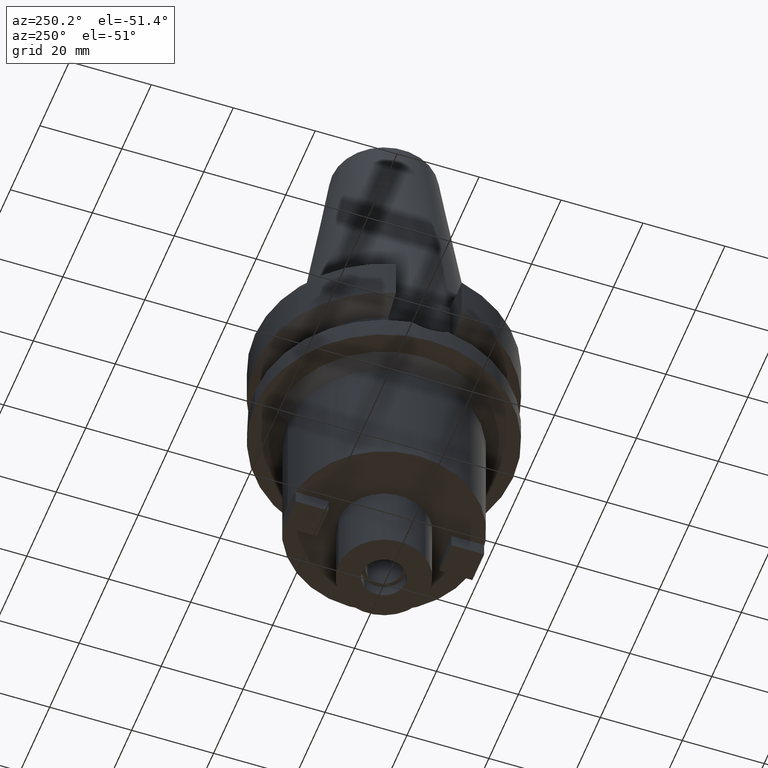
[diagram: clean part render]
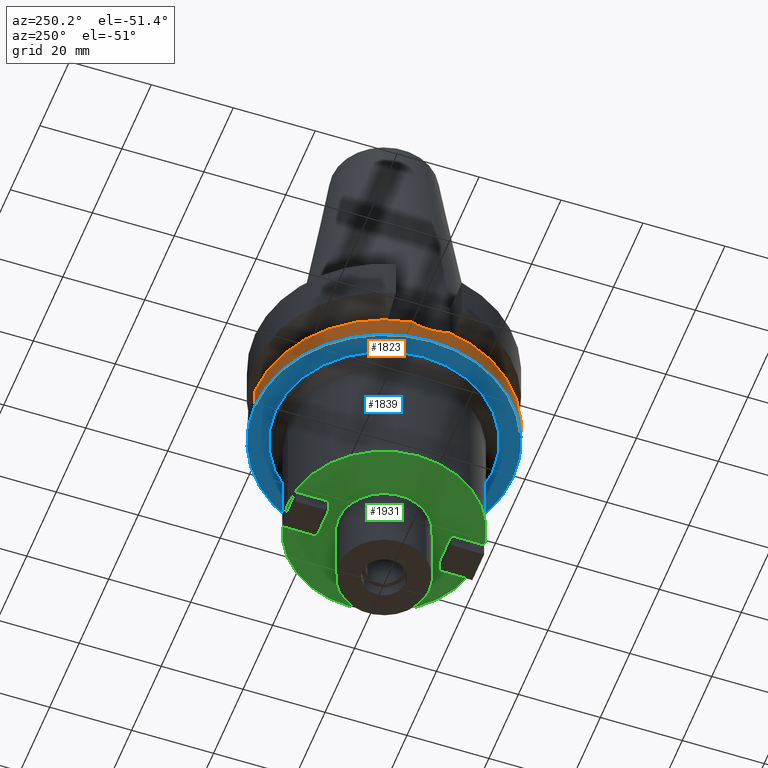
[diagram: same view with three faces highlighted in distinct colors, each labeled with its STEP entity id]
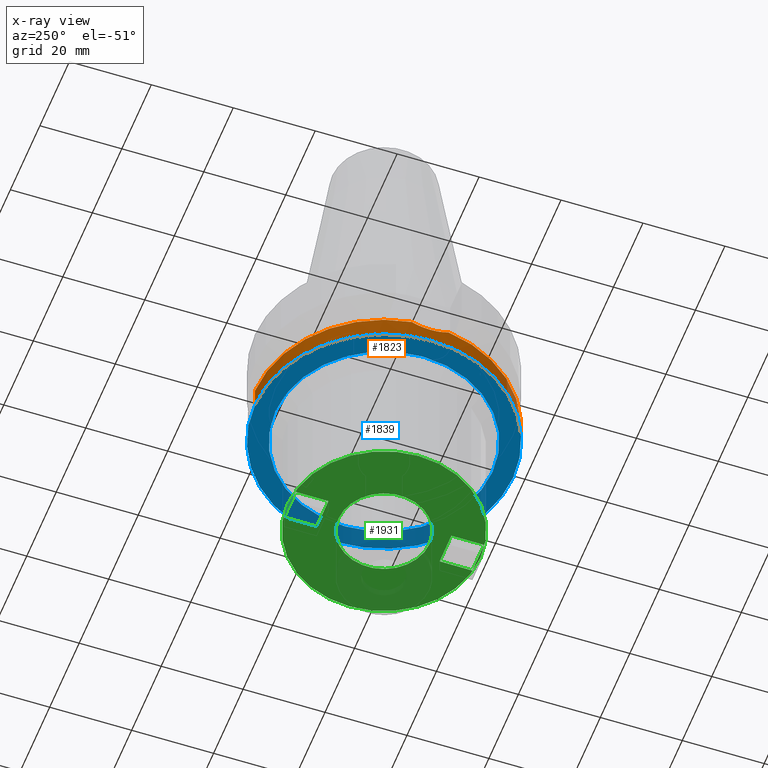
[diagram: x-ray of the same camera — body ghosted, the three highlighted faces saturated]
A machine part, auxiliary view with three faces highlighted in distinct colors.
The next image is the same camera in x-ray (body ghosted, the three faces saturated) — at least one of them is partly hidden behind the body in this view.
Their STEP definitions:

[orange] entity #1823 — the highlighted cylindrical surface (partial cylindrical patch) has radius 31.5 mm, axis along (0, 0, -1).
#444=CARTESIAN_POINT('',(-3.117899877609E1,4.485536235554E0,-2.163449434733E1));
#470=CARTESIAN_POINT('',(-3.117899877609E1,-4.485536235554E0,
-2.163449434733E1));
#505=CARTESIAN_POINT('',(0.E0,0.E0,-2.163449434733E1));
#506=DIRECTION('',(0.E0,0.E0,-1.E0));
#507=DIRECTION('',(0.E0,-1.E0,0.E0));
#508=AXIS2_PLACEMENT_3D('',#505,#506,#507);
#558=DIRECTION('',(0.E0,1.099151708819E-13,-1.E0));
#559=VECTOR('',#558,5.365505652669E0);
#560=CARTESIAN_POINT('',(0.E0,3.15E1,-2.163449434733E1));
#561=LINE('',#560,#559);
#565=CARTESIAN_POINT('',(0.E0,0.E0,-2.163449434733E1));
#566=DIRECTION('',(0.E0,0.E0,-1.E0));
#567=DIRECTION('',(-9.898094849553E-1,1.423979757319E-1,0.E0));
#568=AXIS2_PLACEMENT_3D('',#565,#566,#567);
#608=CARTESIAN_POINT('',(-3.117899877609E1,4.485536235554E0,-2.163449434733E1));
#609=CARTESIAN_POINT('',(-3.124423357808E1,4.032088597538E0,-2.193877402887E1));
#610=CARTESIAN_POINT('',(-3.135971202356E1,3.088611271723E0,-2.243951042622E1));
#611=CARTESIAN_POINT('',(-3.147335039534E1,1.577609785839E0,-2.289666088954E1));
#612=CARTESIAN_POINT('',(-3.151358178442E1,-1.104147917737E-2,
-2.305267738941E1));
#613=CARTESIAN_POINT('',(-3.147231200138E1,-1.596340580381E0,
-2.289259003373E1));
#614=CARTESIAN_POINT('',(-3.135844480018E1,-3.099975252077E0,
-2.243419198236E1));
#615=CARTESIAN_POINT('',(-3.124366543948E1,-4.036037733524E0,
-2.193612401652E1));
#616=CARTESIAN_POINT('',(-3.117899877609E1,-4.485536235554E0,
-2.163449434733E1));
#621=DIRECTION('',(0.E0,-1.105773104655E-13,-1.E0));
#622=VECTOR('',#621,5.365505652669E0);
#623=CARTESIAN_POINT('',(0.E0,-3.15E1,-2.163449434733E1));
#624=LINE('',#623,#622);
#636=CARTESIAN_POINT('',(0.E0,2.112760657889E-14,-2.7E1));
#637=DIRECTION('',(0.E0,0.E0,1.E0));
#638=DIRECTION('',(0.E0,1.E0,0.E0));
#639=AXIS2_PLACEMENT_3D('',#636,#637,#638);
#1296=CARTESIAN_POINT('',(0.E0,-3.15E1,-2.7E1));
#1297=CARTESIAN_POINT('',(0.E0,3.15E1,-2.7E1));
#1298=VERTEX_POINT('',#1296);
#1299=VERTEX_POINT('',#1297);
#1303=CARTESIAN_POINT('',(0.E0,3.15E1,-2.163449434733E1));
#1304=VERTEX_POINT('',#1303);
#1305=CARTESIAN_POINT('',(0.E0,-3.15E1,-2.163449434733E1));
#1306=VERTEX_POINT('',#1305);
#1318=VERTEX_POINT('',#470);
#1322=VERTEX_POINT('',#444);
#1809=CARTESIAN_POINT('',(0.E0,2.112760657889E-14,7.252E1));
#1810=DIRECTION('',(0.E0,0.E0,-1.E0));
#1811=DIRECTION('',(0.E0,-1.E0,0.E0));
#1812=AXIS2_PLACEMENT_3D('',#1809,#1810,#1811);
#1813=CYLINDRICAL_SURFACE('',#1812,3.15E1);
#1814=ORIENTED_EDGE('',*,*,#1724,.T.);
#1815=ORIENTED_EDGE('',*,*,#1749,.F.);
#1816=ORIENTED_EDGE('',*,*,#1788,.T.);
#1818=ORIENTED_EDGE('',*,*,#1817,.F.);
#1819=ORIENTED_EDGE('',*,*,#1784,.F.);
#1820=ORIENTED_EDGE('',*,*,#1800,.F.);
#1821=EDGE_LOOP('',(#1814,#1815,#1816,#1818,#1819,#1820));
#1822=FACE_OUTER_BOUND('',#1821,.F.);
#509=CIRCLE('',#508,3.15E1);
#569=CIRCLE('',#568,3.15E1);
#617=B_SPLINE_CURVE_WITH_KNOTS('',3,(#608,#609,#610,#611,#612,#613,#614,#615,
#616),.UNSPECIFIED.,.F.,.F.,(4,1,1,1,1,1,4),(0.E0,1.666666666667E-1,
3.333333333333E-1,5.E-1,6.666666666667E-1,8.333333333333E-1,1.E0),
.UNSPECIFIED.);
#640=CIRCLE('',#639,3.15E1);
#1724=EDGE_CURVE('',#1322,#1318,#617,.T.);
#1749=EDGE_CURVE('',#1306,#1318,#509,.T.);
#1784=EDGE_CURVE('',#1304,#1299,#561,.T.);
#1788=EDGE_CURVE('',#1306,#1298,#624,.T.);
#1800=EDGE_CURVE('',#1322,#1304,#569,.T.);
#1817=EDGE_CURVE('',#1299,#1298,#640,.T.);
#1823=ADVANCED_FACE('',(#1822),#1813,.T.);

[blue] entity #1839 — the highlighted planar face has unit normal (0, 0, -1).
#628=CARTESIAN_POINT('',(0.E0,2.112760657889E-14,-2.7E1));
#629=DIRECTION('',(0.E0,0.E0,1.E0));
#630=DIRECTION('',(0.E0,-1.E0,0.E0));
#631=AXIS2_PLACEMENT_3D('',#628,#629,#630);
#636=CARTESIAN_POINT('',(0.E0,2.112760657889E-14,-2.7E1));
#637=DIRECTION('',(0.E0,0.E0,1.E0));
#638=DIRECTION('',(0.E0,1.E0,0.E0));
#639=AXIS2_PLACEMENT_3D('',#636,#637,#638);
#644=CARTESIAN_POINT('',(0.E0,0.E0,-2.7E1));
#645=DIRECTION('',(0.E0,0.E0,-1.E0));
#646=DIRECTION('',(0.E0,-1.E0,0.E0));
#647=AXIS2_PLACEMENT_3D('',#644,#645,#646);
#652=CARTESIAN_POINT('',(0.E0,0.E0,-2.7E1));
#653=DIRECTION('',(0.E0,0.E0,-1.E0));
#654=DIRECTION('',(0.E0,1.E0,0.E0));
#655=AXIS2_PLACEMENT_3D('',#652,#653,#654);
#1292=CARTESIAN_POINT('',(0.E0,2.65E1,-2.7E1));
#1293=VERTEX_POINT('',#1292);
#1294=CARTESIAN_POINT('',(0.E0,-2.65E1,-2.7E1));
#1295=VERTEX_POINT('',#1294);
#1296=CARTESIAN_POINT('',(0.E0,-3.15E1,-2.7E1));
#1297=CARTESIAN_POINT('',(0.E0,3.15E1,-2.7E1));
#1298=VERTEX_POINT('',#1296);
#1299=VERTEX_POINT('',#1297);
#1824=CARTESIAN_POINT('',(0.E0,0.E0,-2.7E1));
#1825=DIRECTION('',(0.E0,0.E0,-1.E0));
#1826=DIRECTION('',(0.E0,-1.E0,0.E0));
#1827=AXIS2_PLACEMENT_3D('',#1824,#1825,#1826);
#1828=PLANE('',#1827);
#1829=ORIENTED_EDGE('',*,*,#1786,.T.);
#1830=ORIENTED_EDGE('',*,*,#1817,.T.);
#1831=EDGE_LOOP('',(#1829,#1830));
#1832=FACE_OUTER_BOUND('',#1831,.F.);
#1834=ORIENTED_EDGE('',*,*,#1833,.T.);
#1836=ORIENTED_EDGE('',*,*,#1835,.T.);
#1837=EDGE_LOOP('',(#1834,#1836));
#1838=FACE_BOUND('',#1837,.F.);
#632=CIRCLE('',#631,3.15E1);
#640=CIRCLE('',#639,3.15E1);
#648=CIRCLE('',#647,2.65E1);
#656=CIRCLE('',#655,2.65E1);
#1786=EDGE_CURVE('',#1298,#1299,#632,.T.);
#1817=EDGE_CURVE('',#1299,#1298,#640,.T.);
#1833=EDGE_CURVE('',#1295,#1293,#648,.T.);
#1835=EDGE_CURVE('',#1293,#1295,#656,.T.);
#1839=ADVANCED_FACE('',(#1832,#1838),#1828,.T.);

[green] entity #1931 — the highlighted planar face has unit normal (0, 0, -1).
#704=CARTESIAN_POINT('',(0.E0,2.112760657889E-14,-6.E1));
#705=DIRECTION('',(0.E0,0.E0,1.E0));
#706=DIRECTION('',(0.E0,-1.E0,0.E0));
#707=AXIS2_PLACEMENT_3D('',#704,#705,#706);
#712=CARTESIAN_POINT('',(0.E0,2.112760657889E-14,-6.E1));
#713=DIRECTION('',(0.E0,0.E0,1.E0));
#714=DIRECTION('',(0.E0,1.E0,0.E0));
#715=AXIS2_PLACEMENT_3D('',#712,#713,#714);
#720=CARTESIAN_POINT('',(0.E0,2.112760657889E-14,-6.E1));
#721=DIRECTION('',(0.E0,0.E0,-1.E0));
#722=DIRECTION('',(0.E0,-1.E0,0.E0));
#723=AXIS2_PLACEMENT_3D('',#720,#721,#722);
#728=CARTESIAN_POINT('',(0.E0,2.112760657889E-14,-6.E1));
#729=DIRECTION('',(0.E0,0.E0,-1.E0));
#730=DIRECTION('',(0.E0,1.E0,0.E0));
#731=AXIS2_PLACEMENT_3D('',#728,#729,#730);
#736=DIRECTION('',(0.E0,1.E0,0.E0));
#737=VECTOR('',#736,8.E0);
#738=CARTESIAN_POINT('',(-4.E0,1.5E1,-6.E1));
#739=LINE('',#738,#737);
#743=DIRECTION('',(-1.E0,0.E0,0.E0));
#744=VECTOR('',#743,8.E0);
#745=CARTESIAN_POINT('',(4.E0,1.5E1,-6.E1));
#746=LINE('',#745,#744);
#750=DIRECTION('',(0.E0,-1.E0,0.E0));
#751=VECTOR('',#750,8.E0);
#752=CARTESIAN_POINT('',(4.E0,-1.5E1,-6.E1));
#753=LINE('',#752,#751);
#757=DIRECTION('',(1.E0,0.E0,0.E0));
#758=VECTOR('',#757,8.E0);
#759=CARTESIAN_POINT('',(-4.E0,-1.5E1,-6.E1));
#760=LINE('',#759,#758);
#1082=DIRECTION('',(0.E0,1.E0,0.E0));
#1083=VECTOR('',#1082,8.E0);
#1084=CARTESIAN_POINT('',(4.E0,1.5E1,-6.E1));
#1085=LINE('',#1084,#1083);
#1110=DIRECTION('',(-1.E0,0.E0,0.E0));
#1111=VECTOR('',#1110,8.E0);
#1112=CARTESIAN_POINT('',(4.E0,2.3E1,-6.E1));
#1113=LINE('',#1112,#1111);
#1152=DIRECTION('',(0.E0,-1.E0,0.E0));
#1153=VECTOR('',#1152,8.E0);
#1154=CARTESIAN_POINT('',(-4.E0,-1.5E1,-6.E1));
#1155=LINE('',#1154,#1153);
#1180=DIRECTION('',(1.E0,0.E0,0.E0));
#1181=VECTOR('',#1180,8.E0);
#1182=CARTESIAN_POINT('',(-4.E0,-2.3E1,-6.E1));
#1183=LINE('',#1182,#1181);
#1264=CARTESIAN_POINT('',(0.E0,1.11125E1,-6.E1));
#1265=VERTEX_POINT('',#1264);
#1266=CARTESIAN_POINT('',(0.E0,-1.11125E1,-6.E1));
#1267=VERTEX_POINT('',#1266);
#1268=CARTESIAN_POINT('',(0.E0,-2.35E1,-6.E1));
#1269=CARTESIAN_POINT('',(0.E0,2.35E1,-6.E1));
#1270=VERTEX_POINT('',#1268);
#1271=VERTEX_POINT('',#1269);
#1272=CARTESIAN_POINT('',(-4.E0,1.5E1,-6.E1));
#1273=CARTESIAN_POINT('',(-4.E0,2.3E1,-6.E1));
#1274=VERTEX_POINT('',#1272);
#1275=VERTEX_POINT('',#1273);
#1276=CARTESIAN_POINT('',(4.E0,2.3E1,-6.E1));
#1277=VERTEX_POINT('',#1276);
#1278=CARTESIAN_POINT('',(4.E0,1.5E1,-6.E1));
#1279=VERTEX_POINT('',#1278);
#1280=CARTESIAN_POINT('',(4.E0,-1.5E1,-6.E1));
#1281=CARTESIAN_POINT('',(4.E0,-2.3E1,-6.E1));
#1282=VERTEX_POINT('',#1280);
#1283=VERTEX_POINT('',#1281);
#1284=CARTESIAN_POINT('',(-4.E0,-2.3E1,-6.E1));
#1285=VERTEX_POINT('',#1284);
#1286=CARTESIAN_POINT('',(-4.E0,-1.5E1,-6.E1));
#1287=VERTEX_POINT('',#1286);
#1896=CARTESIAN_POINT('',(0.E0,0.E0,-6.E1));
#1897=DIRECTION('',(0.E0,0.E0,-1.E0));
#1898=DIRECTION('',(0.E0,-1.E0,0.E0));
#1899=AXIS2_PLACEMENT_3D('',#1896,#1897,#1898);
#1900=PLANE('',#1899);
#1901=ORIENTED_EDGE('',*,*,#1875,.T.);
#1902=ORIENTED_EDGE('',*,*,#1891,.T.);
#1903=EDGE_LOOP('',(#1901,#1902));
#1904=FACE_OUTER_BOUND('',#1903,.F.);
#1906=ORIENTED_EDGE('',*,*,#1905,.T.);
#1908=ORIENTED_EDGE('',*,*,#1907,.T.);
#1909=EDGE_LOOP('',(#1906,#1908));
#1910=FACE_BOUND('',#1909,.F.);
#1912=ORIENTED_EDGE('',*,*,#1911,.T.);
#1914=ORIENTED_EDGE('',*,*,#1913,.F.);
#1916=ORIENTED_EDGE('',*,*,#1915,.F.);
#1918=ORIENTED_EDGE('',*,*,#1917,.T.);
#1919=EDGE_LOOP('',(#1912,#1914,#1916,#1918));
#1920=FACE_BOUND('',#1919,.F.);
#1922=ORIENTED_EDGE('',*,*,#1921,.T.);
#1924=ORIENTED_EDGE('',*,*,#1923,.F.);
#1926=ORIENTED_EDGE('',*,*,#1925,.F.);
#1928=ORIENTED_EDGE('',*,*,#1927,.T.);
#1929=EDGE_LOOP('',(#1922,#1924,#1926,#1928));
#1930=FACE_BOUND('',#1929,.F.);
#708=CIRCLE('',#707,2.35E1);
#716=CIRCLE('',#715,2.35E1);
#724=CIRCLE('',#723,1.11125E1);
#732=CIRCLE('',#731,1.11125E1);
#1875=EDGE_CURVE('',#1270,#1271,#708,.T.);
#1891=EDGE_CURVE('',#1271,#1270,#716,.T.);
#1905=EDGE_CURVE('',#1267,#1265,#724,.T.);
#1907=EDGE_CURVE('',#1265,#1267,#732,.T.);
#1911=EDGE_CURVE('',#1274,#1275,#739,.T.);
#1913=EDGE_CURVE('',#1277,#1275,#1113,.T.);
#1915=EDGE_CURVE('',#1279,#1277,#1085,.T.);
#1917=EDGE_CURVE('',#1279,#1274,#746,.T.);
#1921=EDGE_CURVE('',#1282,#1283,#753,.T.);
#1923=EDGE_CURVE('',#1285,#1283,#1183,.T.);
#1925=EDGE_CURVE('',#1287,#1285,#1155,.T.);
#1927=EDGE_CURVE('',#1287,#1282,#760,.T.);
#1931=ADVANCED_FACE('',(#1904,#1910,#1920,#1930),#1900,.T.);